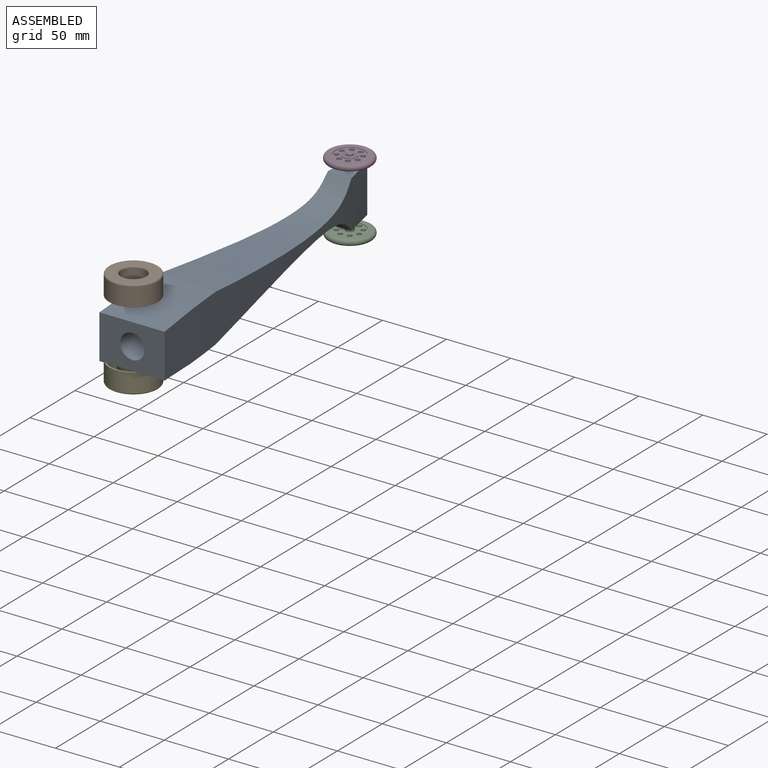
[diagram: assembled view]
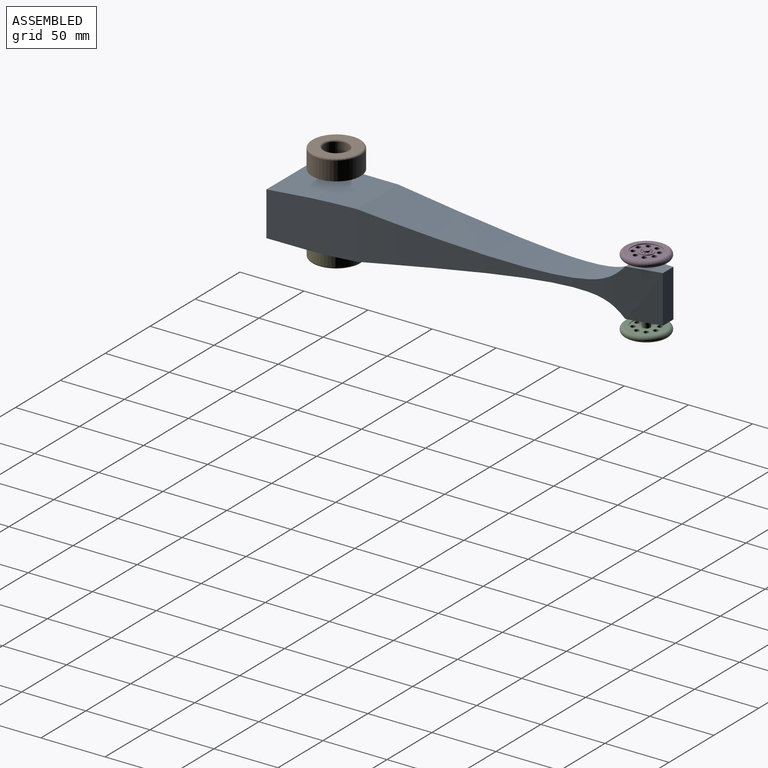
[diagram: assembled view, second angle]
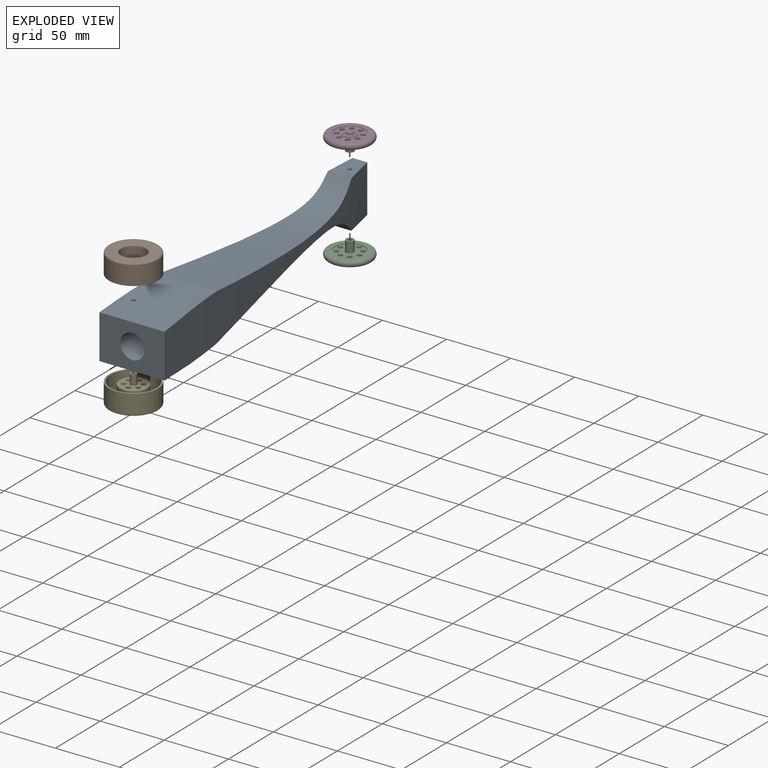
[diagram: exploded view]
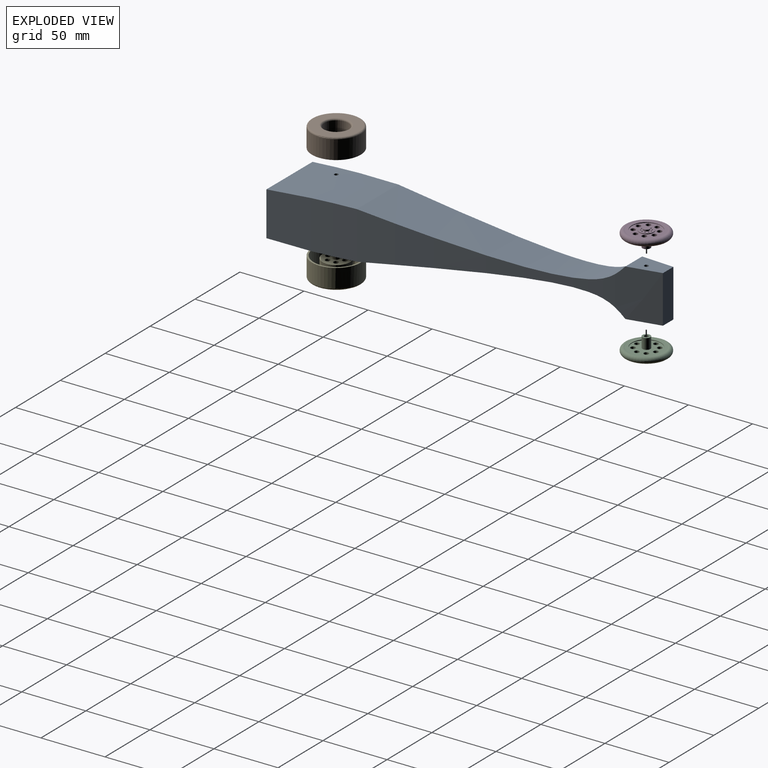
[diagram: exploded view, second angle]
ASSEMBLY  parts=5 mates=4
PART A: 14 faces, bbox 37.7x281.9x54.2 mm
  f0: plane 51.01x34.42mm, normal (0,-1,0), area 1470.6mm2, adj f1,f2,f4,f5,f6
  f1: extruded ~281.68x37.08mm, area 6593.5mm2, adj f0,f5,f6,f7,f8,f9,f10,f11
  f2: cylinder r=9.53mm len=50.8mm, axis (0,-1,0), area 3040.2mm2, adj f0,f3
  f3: plane 19.05x19.05mm, normal (0,-1,0), area 285mm2, adj f2
  f4: extruded ~281.68x40.69mm, area 6664.2mm2, adj f0,f5,f6,f7,f8,f9,f10,f11
  f5: extruded ~66.08x52.38mm, area 3198.5mm2, adj f0,f1,f4,f11,f13
  f6: extruded ~66.08x52.38mm, area 3198.5mm2, adj f0,f1,f4,f7,f13
  f7: extruded ~190.21x47.56mm, area 6584.2mm2, adj f1,f4,f6,f8
  f8: plane 25.84x18.94mm, normal (-1,0,0), area 379.5mm2, adj f1,f4,f7,f9,f12
  f9: plane 37.08x11.54mm, normal (0,1,0), area 427.8mm2, adj f1,f4,f8,f10
  f10: plane 25.84x18.94mm, normal (1,0,0), area 379.5mm2, adj f1,f4,f9,f11,f12
  f11: extruded ~190.21x47.56mm, area 6584.2mm2, adj f1,f4,f5,f10
  f12: cylinder r=1.59mm len=37.08mm, axis (1,0,0), area 369.9mm2, adj f8,f10
  f13: cylinder r=1.59mm len=36.96mm, axis (1,0,0), area 368.7mm2, adj f5,f6
PART B: 20 faces, bbox 41.2x41.2x21.6 mm
  f0: cylinder r=19.05mm len=38.1mm, axis (0,0,1), area 1748.1mm2, adj f2,f19
  f1: plane 35.56x35.56mm, normal (0,0,-1), area 627.1mm2, adj f18,f19
  f2: plane 38.1x38.1mm, normal (0,0,1), area 146.9mm2, adj f0,f5
  f3: cylinder r=9.53mm len=19.05mm, axis (0,0,-1), area 684.1mm2, adj f4,f18
  f4: plane 19.05x19.05mm, normal (0,0,-1), area 211.6mm2, adj f3,f9,f10,f11,f12,f13,f14,f17
  f5: cylinder r=17.78mm len=35.56mm, axis (0,0,1), area 1631.6mm2, adj f2,f6
  f6: plane 35.56x35.56mm, normal (0,0,1), area 627.1mm2, adj f5,f7
  f7: cylinder r=10.79mm len=21.59mm, axis (0,0,-1), area 861.4mm2, adj f6,f8
  f8: plane 21.59x21.59mm, normal (0,0,1), area 277.4mm2, adj f7,f9,f10,f11,f12,f13,f14,f15
  f9: cylinder r=1.91mm len=3.81mm, axis (0,0,-1), area 15.2mm2, adj f4,f8
  f10: cylinder r=1.91mm len=3.81mm, axis (0,0,-1), area 15.2mm2, adj f4,f8
  f11: cylinder r=1.91mm len=3.81mm, axis (0,0,-1), area 15.2mm2, adj f4,f8
  f12: cylinder r=1.91mm len=3.81mm, axis (0,0,-1), area 15.2mm2, adj f4,f8
  f13: cylinder r=1.91mm len=3.81mm, axis (0,0,-1), area 15.2mm2, adj f4,f8
  f14: cylinder r=1.91mm len=3.81mm, axis (0,0,-1), area 15.2mm2, adj f4,f8
  f15: cylinder r=2.54mm len=7.62mm, axis (0,0,-1), area 121.6mm2, adj f8,f16
  f16: plane 5.08x5.08mm, normal (0,0,1), area 15.2mm2, adj f15,f17
  f17: cylinder r=1.27mm len=8.89mm, axis (0,0,1), area 70.9mm2, adj f4,f16
  f18: torus R=10.79mm, axis (0,0,-1), area 125.2mm2, adj f1,f3
  f19: torus R=17.78mm, axis (0,0,-1), area 233mm2, adj f0,f1
PART C: 43 faces, bbox 43.9x22.9x43.9 mm
  f0: revolved ~34.31x34.31mm, area 855.2mm2, adj f16,f18
  f1: plane 23.03x23.03mm, normal (0,-1,0), area 296.9mm2, adj f6,f7,f8,f9,f10,f11,f12,f13
  f2: plane 11.33x11.33mm, normal (0,1,0), area 76.5mm2, adj f3,f5,f19,f21,f23,f25,f27,f29
  f3: cylinder r=2.4mm len=4.8mm, axis (0,-1,0), area 16.7mm2, adj f2,f4
  f4: plane 4.8x4.8mm, normal (0,1,0), area 18.1mm2, adj f3
  f5: cylinder r=5.66mm len=11.33mm, axis (0,-1,0), area 18.1mm2, adj f2,f14
  f6: cylinder r=1.88mm len=3.76mm, axis (0,-1,0), area 40.9mm2, adj f1,f14
  f7: cylinder r=1.88mm len=3.76mm, axis (0,-1,0), area 40.9mm2, adj f1,f14
  f8: cylinder r=1.88mm len=3.76mm, axis (0,-1,0), area 40.9mm2, adj f1,f14
  f9: cylinder r=1.88mm len=3.76mm, axis (0,-1,0), area 40.9mm2, adj f1,f14
  f10: cylinder r=1.88mm len=3.76mm, axis (0,-1,0), area 40.9mm2, adj f1,f14
  f11: cylinder r=1.88mm len=3.76mm, axis (0,-1,0), area 40.9mm2, adj f1,f14
  f12: cylinder r=1.88mm len=3.76mm, axis (0,-1,0), area 40.9mm2, adj f1,f14
  f13: cylinder r=1.88mm len=3.76mm, axis (0,-1,0), area 40.9mm2, adj f1,f14
  f14: plane 23.03x23.03mm, normal (0,1,0), area 226.8mm2, adj f5,f6,f7,f8,f9,f10,f11,f12
  f15: cylinder r=11.51mm len=23.03mm, axis (0,1,0), area 36.7mm2, adj f1,f16
  f16: plane 37.43x37.43mm, normal (0,-1,0), area 193.5mm2, adj f0,f15
  f17: cylinder r=11.51mm len=23.03mm, axis (0,1,0), area 36.7mm2, adj f14,f18
  f18: plane 37.43x37.43mm, normal (0,1,0), area 193.5mm2, adj f0,f17
  f19: cylinder r=0.44mm len=0.89mm, axis (0,-1,0), area 1.1mm2, adj f2,f20
  f20: plane 0.89x0.89mm, normal (0,1,0), area 0.6mm2, adj f19
  f21: cylinder r=0.44mm len=0.89mm, axis (0,-1,0), area 1.1mm2, adj f2,f22
  f22: plane 0.89x0.89mm, normal (0,1,0), area 0.6mm2, adj f21
  f23: cylinder r=0.44mm len=0.89mm, axis (0,-1,0), area 1.1mm2, adj f2,f24
  f24: plane 0.89x0.89mm, normal (0,1,0), area 0.6mm2, adj f23
  f25: cylinder r=0.44mm len=0.89mm, axis (0,-1,0), area 1.1mm2, adj f2,f26
  f26: plane 0.89x0.89mm, normal (0,1,0), area 0.6mm2, adj f25
  f27: cylinder r=0.44mm len=0.89mm, axis (0,-1,0), area 1.1mm2, adj f2,f28
  f28: plane 0.89x0.89mm, normal (0,1,0), area 0.6mm2, adj f27
  f29: cylinder r=0.44mm len=0.89mm, axis (0,-1,0), area 1.1mm2, adj f2,f30
  f30: plane 0.89x0.89mm, normal (0,1,0), area 0.6mm2, adj f29
  f31: cylinder r=0.44mm len=0.89mm, axis (0,-1,0), area 1.1mm2, adj f2,f32
  f32: plane 0.89x0.89mm, normal (0,1,0), area 0.6mm2, adj f31
  f33: cylinder r=0.44mm len=0.89mm, axis (0,-1,0), area 1.1mm2, adj f2,f34
  f34: plane 0.89x0.89mm, normal (0,1,0), area 0.6mm2, adj f33
  f35: cylinder r=0.44mm len=0.89mm, axis (0,-1,0), area 1.1mm2, adj f2,f36
  f36: plane 0.89x0.89mm, normal (0,1,0), area 0.6mm2, adj f35
  f37: cylinder r=0.44mm len=0.89mm, axis (0,-1,0), area 1.1mm2, adj f2,f38
  f38: plane 0.89x0.89mm, normal (0,1,0), area 0.6mm2, adj f37
  f39: cylinder r=3.12mm len=8.26mm, axis (0,1,0), area 162mm2, adj f1,f40
  f40: plane 6.25x6.25mm, normal (0,-1,0), area 21.7mm2, adj f39,f41
  f41: cylinder r=1.69mm len=10.13mm, axis (0,-1,0), area 107.6mm2, adj f40,f42
  f42: plane 3.38x3.38mm, normal (0,-1,0), area 9mm2, adj f41
PART D: same geometry as C
PART E: same geometry as B
PLACE A rot(axis=(0,1,0),90deg) t=(-60.68,-2.34,35.96)mm
PLACE B rot(axis=(1,-0.07,0),180deg) t=(-43.21,-129.81,66.33)mm fixed
PLACE C rot(axis=(-0.67,-0.52,0.52),112.2deg) t=(-18.11,153.77,11.69)mm fixed
PLACE D rot(axis=(0.68,0.52,0.52),111.6deg) t=(-45.31,160.88,60.87)mm fixed
PLACE E rot(axis=(0,0,1),3deg) t=(-43.21,-129.81,4.47)mm fixed
MATE cylindrical D.f3 <-> A.f12  axis (0,0,-1) through (-43.61,111.8,52.61)mm
MATE cylindrical C.f3 <-> A.f12  axis (0,0,1) through (-43.61,111.8,19.95)mm
MATE cylindrical E.f0 <-> A.f13  axis (0,0,1) through (-43.21,-129.81,18.12)mm
MATE cylindrical B.f0 <-> A.f13  axis (0,0,-1) through (-43.21,-129.81,52.68)mm
